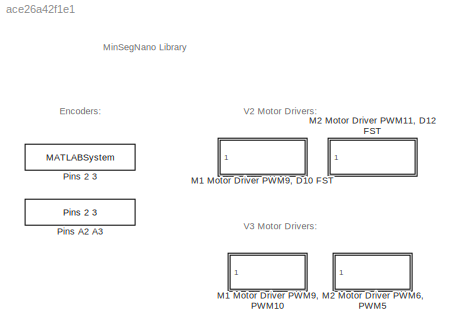
MODEL slx_ace26a42f1e1
KIND library
CONFIG AbsTol = auto
CONFIG FixedStep = auto
CONFIG MaxStep = auto
CONFIG MinStep = auto
CONFIG RelTol = 1e-3
CONFIG SampleTimeConstraint = Unconstrained
CONFIG Solver = ode45
CONFIG SolverMode = Auto
CONFIG SolverName = ode45
CONFIG StartTime = 0.0
CONFIG StopTime = 10.0
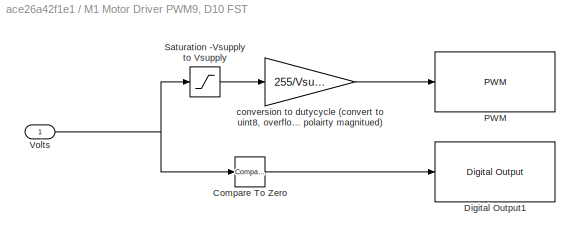
BLOCK [SubSystem] M1 Motor Driver PWM9, D10 FST
  Ports = [1]
  RequestExecContextInheritance = off
BLOCK [Reference] M1 Motor Driver PWM9, D10 FST/Compare To Zero  REF=simulink/Logic and Bit
Operations/Compare
To Zero
  OutDataTypeStr = boolean
  Ports = [1, 1]
  SourceBlock = simulink/Logic and Bit\nOperations/Compare\nTo Zero
  SourceType = Compare To Zero
  ZeroCross = on
  relop = <
BLOCK [Reference] M1 Motor Driver PWM9, D10 FST/Digital Output1  REF=arduinolib/Digital Output
  Ports = [1]
  SourceBlock = arduinolib/Digital Output
  SourceType = Arduino Digital Output
  blockPlatform = arduino
  pinNumber = 10
BLOCK [Reference] M1 Motor Driver PWM9, D10 FST/PWM  REF=arduinolib/PWM
  Ports = [1]
  SourceBlock = arduinolib/PWM
  SourceType = Arduino PWM
  blockPlatform = arduino
  pinNumber = 9
BLOCK [Saturate] M1 Motor Driver PWM9, D10 FST/Saturation -Vsupply to Vsupply
  InputPortMap = u0
  LowerLimit = -Vsupply
  OutDataTypeStr = single
  Ports = [1, 1]
  UpperLimit = Vsupply
BLOCK [Inport] M1 Motor Driver PWM9, D10 FST/Volts
  IconDisplay = Port number
BLOCK [Gain] M1 Motor Driver PWM9, D10 FST/conversion to dutycycle (convert to uint8, overflow will provide reverse polairty magnitued)
  Gain = 255/Vsupply
  OutDataTypeStr = uint8
  ParamDataTypeStr = Inherit: Inherit via internal rule
  SaturateOnIntegerOverflow = off
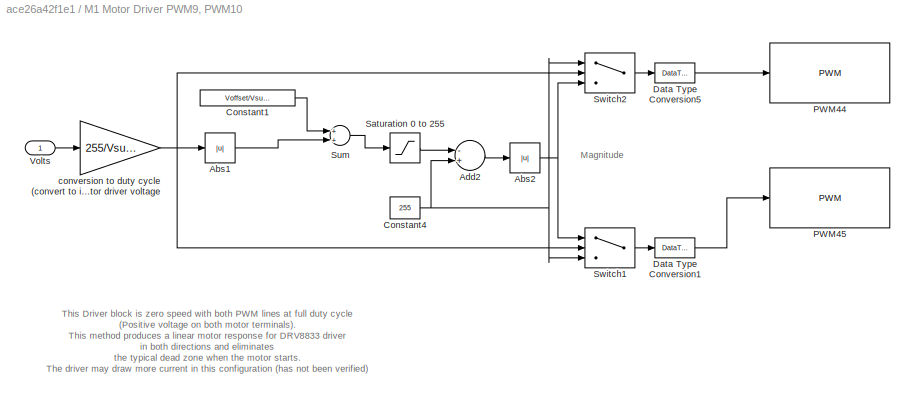
BLOCK [SubSystem] M1 Motor Driver PWM9, PWM10
  Ports = [1]
  RequestExecContextInheritance = off
BLOCK [Abs] M1 Motor Driver PWM9, PWM10/Abs1
  SaturateOnIntegerOverflow = off
BLOCK [Abs] M1 Motor Driver PWM9, PWM10/Abs2
  SaturateOnIntegerOverflow = off
BLOCK [Sum] M1 Motor Driver PWM9, PWM10/Add2
  InputSameDT = off
  Inputs = -+
  OutDataTypeStr = Inherit: Inherit via internal rule
  Ports = [2, 1]
  SaturateOnIntegerOverflow = off
BLOCK [Constant] M1 Motor Driver PWM9, PWM10/Constant1
  Value = Voffset/Vsupply*255
BLOCK [Constant] M1 Motor Driver PWM9, PWM10/Constant4
  Value = 255
BLOCK [DataTypeConversion] M1 Motor Driver PWM9, PWM10/Data Type Conversion1
  OutDataTypeStr = uint8
  RndMeth = Floor
  SaturateOnIntegerOverflow = off
BLOCK [DataTypeConversion] M1 Motor Driver PWM9, PWM10/Data Type Conversion5
  OutDataTypeStr = uint8
  RndMeth = Floor
  SaturateOnIntegerOverflow = off
BLOCK [Reference] M1 Motor Driver PWM9, PWM10/PWM44  REF=arduinolib/PWM
  Ports = [1]
  SourceBlock = arduinolib/PWM
  SourceType = Arduino PWM
  blockPlatform = arduino
  pinNumber = 9
BLOCK [Reference] M1 Motor Driver PWM9, PWM10/PWM45  REF=arduinolib/PWM
  Ports = [1]
  SourceBlock = arduinolib/PWM
  SourceType = Arduino PWM
  blockPlatform = arduino
  pinNumber = 10
BLOCK [Saturate] M1 Motor Driver PWM9, PWM10/Saturation 0 to 255
  InputPortMap = u0
  LowerLimit = 0
  Ports = [1, 1]
  UpperLimit = 255
BLOCK [Sum] M1 Motor Driver PWM9, PWM10/Sum
  InputSameDT = off
  OutDataTypeStr = Inherit: Inherit via internal rule
  Ports = [2, 1]
  SaturateOnIntegerOverflow = off
BLOCK [Switch] M1 Motor Driver PWM9, PWM10/Switch1
  InputSameDT = off
  SaturateOnIntegerOverflow = off
BLOCK [Switch] M1 Motor Driver PWM9, PWM10/Switch2
  InputSameDT = off
  SaturateOnIntegerOverflow = off
BLOCK [Inport] M1 Motor Driver PWM9, PWM10/Volts
  IconDisplay = Port number
BLOCK [Gain] M1 Motor Driver PWM9, PWM10/conversion to duty cycle (convert to int) denominator is motor driver voltage
  Gain = 255/Vsupply
  OutDataTypeStr = int16
  ParamDataTypeStr = Inherit: Inherit via internal rule
  SaturateOnIntegerOverflow = off
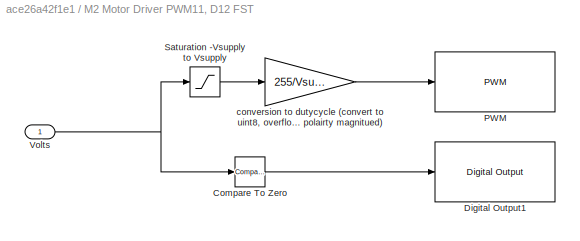
BLOCK [SubSystem] M2 Motor Driver PWM11, D12 FST
  Ports = [1]
  RequestExecContextInheritance = off
BLOCK [Reference] M2 Motor Driver PWM11, D12 FST/Compare To Zero  REF=simulink/Logic and Bit
Operations/Compare
To Zero
  OutDataTypeStr = boolean
  Ports = [1, 1]
  SourceBlock = simulink/Logic and Bit\nOperations/Compare\nTo Zero
  SourceType = Compare To Zero
  ZeroCross = on
  relop = <
BLOCK [Reference] M2 Motor Driver PWM11, D12 FST/Digital Output1  REF=arduinolib/Digital Output
  Ports = [1]
  SourceBlock = arduinolib/Digital Output
  SourceType = Arduino Digital Output
  blockPlatform = arduino
  pinNumber = 12
BLOCK [Reference] M2 Motor Driver PWM11, D12 FST/PWM  REF=arduinolib/PWM
  Ports = [1]
  SourceBlock = arduinolib/PWM
  SourceType = Arduino PWM
  blockPlatform = arduino
  pinNumber = 11
BLOCK [Saturate] M2 Motor Driver PWM11, D12 FST/Saturation -Vsupply to Vsupply
  InputPortMap = u0
  LowerLimit = -Vsupply
  OutDataTypeStr = single
  Ports = [1, 1]
  UpperLimit = Vsupply
BLOCK [Inport] M2 Motor Driver PWM11, D12 FST/Volts
  IconDisplay = Port number
BLOCK [Gain] M2 Motor Driver PWM11, D12 FST/conversion to dutycycle (convert to uint8, overflow will provide reverse polairty magnitued)
  Gain = 255/Vsupply
  OutDataTypeStr = uint8
  ParamDataTypeStr = Inherit: Inherit via internal rule
  SaturateOnIntegerOverflow = off
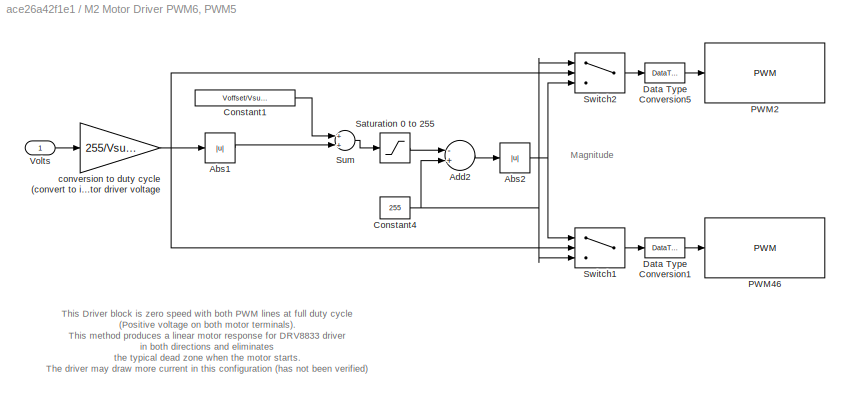
BLOCK [SubSystem] M2 Motor Driver PWM6, PWM5
  Ports = [1]
  RequestExecContextInheritance = off
BLOCK [Abs] M2 Motor Driver PWM6, PWM5/Abs1
  SaturateOnIntegerOverflow = off
BLOCK [Abs] M2 Motor Driver PWM6, PWM5/Abs2
  SaturateOnIntegerOverflow = off
BLOCK [Sum] M2 Motor Driver PWM6, PWM5/Add2
  InputSameDT = off
  Inputs = -+
  OutDataTypeStr = Inherit: Inherit via internal rule
  Ports = [2, 1]
  SaturateOnIntegerOverflow = off
BLOCK [Constant] M2 Motor Driver PWM6, PWM5/Constant1
  Value = Voffset/Vsupply*255
BLOCK [Constant] M2 Motor Driver PWM6, PWM5/Constant4
  Value = 255
BLOCK [DataTypeConversion] M2 Motor Driver PWM6, PWM5/Data Type Conversion1
  OutDataTypeStr = uint8
  RndMeth = Floor
  SaturateOnIntegerOverflow = off
BLOCK [DataTypeConversion] M2 Motor Driver PWM6, PWM5/Data Type Conversion5
  OutDataTypeStr = uint8
  RndMeth = Floor
  SaturateOnIntegerOverflow = off
BLOCK [Reference] M2 Motor Driver PWM6, PWM5/PWM2  REF=arduinolib/PWM
  Ports = [1]
  SourceBlock = arduinolib/PWM
  SourceType = Arduino PWM
  blockPlatform = arduino
  pinNumber = 6
BLOCK [Reference] M2 Motor Driver PWM6, PWM5/PWM46  REF=arduinolib/PWM
  Ports = [1]
  SourceBlock = arduinolib/PWM
  SourceType = Arduino PWM
  blockPlatform = arduino
  pinNumber = 5
BLOCK [Saturate] M2 Motor Driver PWM6, PWM5/Saturation 0 to 255
  InputPortMap = u0
  LowerLimit = 0
  Ports = [1, 1]
  UpperLimit = 255
BLOCK [Sum] M2 Motor Driver PWM6, PWM5/Sum
  InputSameDT = off
  OutDataTypeStr = Inherit: Inherit via internal rule
  Ports = [2, 1]
  SaturateOnIntegerOverflow = off
BLOCK [Switch] M2 Motor Driver PWM6, PWM5/Switch1
  InputSameDT = off
  SaturateOnIntegerOverflow = off
BLOCK [Switch] M2 Motor Driver PWM6, PWM5/Switch2
  InputSameDT = off
  SaturateOnIntegerOverflow = off
BLOCK [Inport] M2 Motor Driver PWM6, PWM5/Volts
  IconDisplay = Port number
BLOCK [Gain] M2 Motor Driver PWM6, PWM5/conversion to duty cycle (convert to int) denominator is motor driver voltage
  Gain = 255/Vsupply
  OutDataTypeStr = int16
  ParamDataTypeStr = Inherit: Inherit via internal rule
  SaturateOnIntegerOverflow = off
BLOCK [MATLABSystem] Pins 2 3
  Encoder = 0
  MaskDisplay = disp('soEncoder');\nport_label('output',1,'y');
  MaskType = Encoder_arduino_uno_nano
  PinA = 2
  PinB = 3
  Ports = [0, 1]
  System = Encoder_arduino_uno_nano
BLOCK [Reference] Pins A2 A3  REF=MinSegLibrary_MinSegNano/Pins 2 3
  Encoder = 4
  PinA = 16
  PinB = 17
  Ports = [0, 1]
  SourceBlock = MinSegLibrary_MinSegNano/Pins 2 3
  SourceType = Encoder_arduino_uno_nano
ANNOTATION (root): Encoders:
ANNOTATION (root): MinSegNano Library
ANNOTATION (root): V2 Motor Drivers:
ANNOTATION (root): V3 Motor Drivers:
ANNOTATION M1 Motor Driver PWM9, PWM10: Magnitude
ANNOTATION M1 Motor Driver PWM9, PWM10: This Driver block is zero speed with both PWM lines at full duty cycle (Positive voltage on both motor terminals). This method produces a linear motor response for DRV8833 driver in both directions and eliminates the typical dead zone when the motor starts. The driver may draw more current in this configuration (has not been verified) The SN754410 driver this has no effect, so the driver could alt...<+76ch>
ANNOTATION M2 Motor Driver PWM6, PWM5: Magnitude
ANNOTATION M2 Motor Driver PWM6, PWM5: This Driver block is zero speed with both PWM lines at full duty cycle (Positive voltage on both motor terminals). This method produces a linear motor response for DRV8833 driver in both directions and eliminates the typical dead zone when the motor starts. The driver may draw more current in this configuration (has not been verified) The SN754410 driver this has no effect, so the driver could alt...<+76ch>
LINE M1 Motor Driver PWM9, D10 FST/Compare To Zero:1 -> M1 Motor Driver PWM9, D10 FST/Digital Output1:1
LINE M1 Motor Driver PWM9, D10 FST/Saturation -Vsupply to Vsupply:1 -> M1 Motor Driver PWM9, D10 FST/conversion to dutycycle (convert to uint8, overflow will provide reverse polairty magnitued):1
NET M1 Motor Driver PWM9, D10 FST/Volts:1 -> M1 Motor Driver PWM9, D10 FST/Compare To Zero:1, M1 Motor Driver PWM9, D10 FST/Saturation -Vsupply to Vsupply:1
LINE M1 Motor Driver PWM9, D10 FST/conversion to dutycycle (convert to uint8, overflow will provide reverse polairty magnitued):1 -> M1 Motor Driver PWM9, D10 FST/PWM:1
LINE M1 Motor Driver PWM9, PWM10/Abs1:1 -> M1 Motor Driver PWM9, PWM10/Sum:2
NET M1 Motor Driver PWM9, PWM10/Abs2:1 -> M1 Motor Driver PWM9, PWM10/Switch1:1, M1 Motor Driver PWM9, PWM10/Switch2:3
LINE M1 Motor Driver PWM9, PWM10/Add2:1 -> M1 Motor Driver PWM9, PWM10/Abs2:1
LINE M1 Motor Driver PWM9, PWM10/Constant1:1 -> M1 Motor Driver PWM9, PWM10/Sum:1
NET M1 Motor Driver PWM9, PWM10/Constant4:1 -> M1 Motor Driver PWM9, PWM10/Add2:2, M1 Motor Driver PWM9, PWM10/Switch1:3, M1 Motor Driver PWM9, PWM10/Switch2:1
LINE M1 Motor Driver PWM9, PWM10/Data Type Conversion1:1 -> M1 Motor Driver PWM9, PWM10/PWM45:1
LINE M1 Motor Driver PWM9, PWM10/Data Type Conversion5:1 -> M1 Motor Driver PWM9, PWM10/PWM44:1
LINE M1 Motor Driver PWM9, PWM10/Saturation 0 to 255:1 -> M1 Motor Driver PWM9, PWM10/Add2:1
LINE M1 Motor Driver PWM9, PWM10/Sum:1 -> M1 Motor Driver PWM9, PWM10/Saturation 0 to 255:1
LINE M1 Motor Driver PWM9, PWM10/Switch1:1 -> M1 Motor Driver PWM9, PWM10/Data Type Conversion1:1
LINE M1 Motor Driver PWM9, PWM10/Switch2:1 -> M1 Motor Driver PWM9, PWM10/Data Type Conversion5:1
LINE M1 Motor Driver PWM9, PWM10/Volts:1 -> M1 Motor Driver PWM9, PWM10/conversion to duty cycle (convert to int) denominator is motor driver voltage:1
NET M1 Motor Driver PWM9, PWM10/conversion to duty cycle (convert to int) denominator is motor driver voltage:1 -> M1 Motor Driver PWM9, PWM10/Abs1:1, M1 Motor Driver PWM9, PWM10/Switch1:2, M1 Motor Driver PWM9, PWM10/Switch2:2
LINE M2 Motor Driver PWM11, D12 FST/Compare To Zero:1 -> M2 Motor Driver PWM11, D12 FST/Digital Output1:1
LINE M2 Motor Driver PWM11, D12 FST/Saturation -Vsupply to Vsupply:1 -> M2 Motor Driver PWM11, D12 FST/conversion to dutycycle (convert to uint8, overflow will provide reverse polairty magnitued):1
NET M2 Motor Driver PWM11, D12 FST/Volts:1 -> M2 Motor Driver PWM11, D12 FST/Compare To Zero:1, M2 Motor Driver PWM11, D12 FST/Saturation -Vsupply to Vsupply:1
LINE M2 Motor Driver PWM11, D12 FST/conversion to dutycycle (convert to uint8, overflow will provide reverse polairty magnitued):1 -> M2 Motor Driver PWM11, D12 FST/PWM:1
LINE M2 Motor Driver PWM6, PWM5/Abs1:1 -> M2 Motor Driver PWM6, PWM5/Sum:2
NET M2 Motor Driver PWM6, PWM5/Abs2:1 -> M2 Motor Driver PWM6, PWM5/Switch1:1, M2 Motor Driver PWM6, PWM5/Switch2:3
LINE M2 Motor Driver PWM6, PWM5/Add2:1 -> M2 Motor Driver PWM6, PWM5/Abs2:1
LINE M2 Motor Driver PWM6, PWM5/Constant1:1 -> M2 Motor Driver PWM6, PWM5/Sum:1
NET M2 Motor Driver PWM6, PWM5/Constant4:1 -> M2 Motor Driver PWM6, PWM5/Add2:2, M2 Motor Driver PWM6, PWM5/Switch1:3, M2 Motor Driver PWM6, PWM5/Switch2:1
LINE M2 Motor Driver PWM6, PWM5/Data Type Conversion1:1 -> M2 Motor Driver PWM6, PWM5/PWM46:1
LINE M2 Motor Driver PWM6, PWM5/Data Type Conversion5:1 -> M2 Motor Driver PWM6, PWM5/PWM2:1
LINE M2 Motor Driver PWM6, PWM5/Saturation 0 to 255:1 -> M2 Motor Driver PWM6, PWM5/Add2:1
LINE M2 Motor Driver PWM6, PWM5/Sum:1 -> M2 Motor Driver PWM6, PWM5/Saturation 0 to 255:1
LINE M2 Motor Driver PWM6, PWM5/Switch1:1 -> M2 Motor Driver PWM6, PWM5/Data Type Conversion1:1
LINE M2 Motor Driver PWM6, PWM5/Switch2:1 -> M2 Motor Driver PWM6, PWM5/Data Type Conversion5:1
LINE M2 Motor Driver PWM6, PWM5/Volts:1 -> M2 Motor Driver PWM6, PWM5/conversion to duty cycle (convert to int) denominator is motor driver voltage:1
NET M2 Motor Driver PWM6, PWM5/conversion to duty cycle (convert to int) denominator is motor driver voltage:1 -> M2 Motor Driver PWM6, PWM5/Abs1:1, M2 Motor Driver PWM6, PWM5/Switch1:2, M2 Motor Driver PWM6, PWM5/Switch2:2
note: NET lines group one-source signal fan-out (src -> all destinations, sorted); 1:1 wires keep LINE
